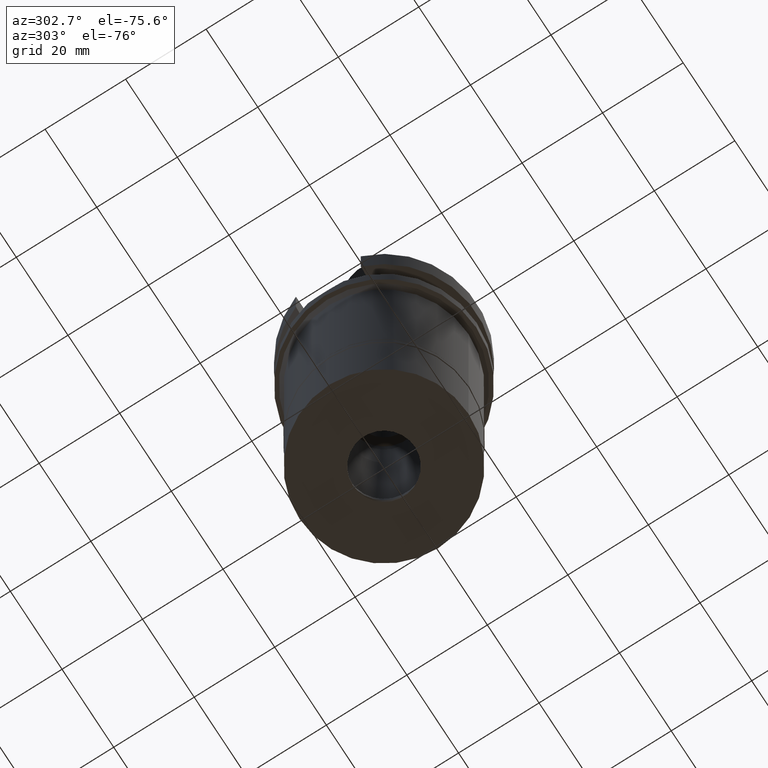
[diagram: clean part render]
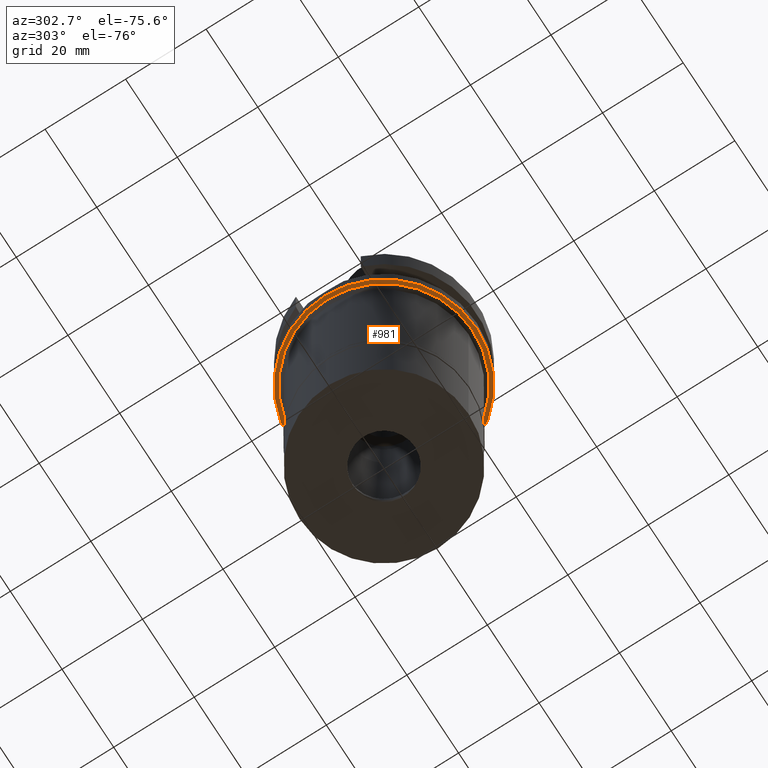
[diagram: same view with one face highlighted and labeled with its STEP entity id]
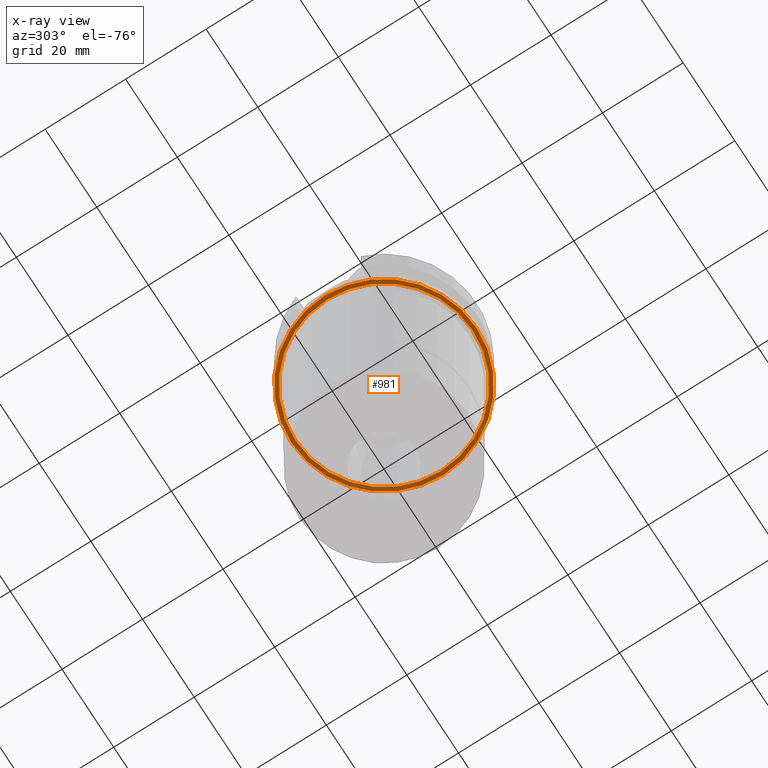
[diagram: x-ray of the same camera — body ghosted, the highlighted face saturated]
A machine part, auxiliary view. The second image highlights one B-rep face of the part: STEP entity #981.
The next image is the same camera in x-ray: the body ghosted, the highlighted face saturated — about 38% of this face is hidden behind the body in this view.
In plain terms, the highlighted planar face has unit normal (0, 0, -1).
Its self-contained STEP definition (entity closure, byte-faithful):
#113 = ORIENTED_EDGE ( 'NONE', *, *, #925, .F. ) ;
#184 = FACE_OUTER_BOUND ( 'NONE', #301, .T. ) ;
#274 = CARTESIAN_POINT ( 'NONE',  ( 0.0000000000000000000, -22.00000000000000000, -22.00000000000000000 ) ) ;
#301 = EDGE_LOOP ( 'NONE', ( #113, #1977 ) ) ;
#306 = CARTESIAN_POINT ( 'NONE',  ( 0.0000000000000000000, -23.00000000000000000, -22.00000000000000000 ) ) ;
#358 = PLANE ( 'NONE',  #1905 ) ;
#379 = AXIS2_PLACEMENT_3D ( 'NONE', #657, #2399, #918 ) ;
#429 = CIRCLE ( 'NONE', #379, 23.00000000000000000 ) ;
#479 = AXIS2_PLACEMENT_3D ( 'NONE', #1483, #1531, #2215 ) ;
#563 = CARTESIAN_POINT ( 'NONE',  ( 0.0000000000000000000, 0.0000000000000000000, -22.00000000000000000 ) ) ;
#633 = CIRCLE ( 'NONE', #1851, 22.00000000000000000 ) ;
#657 = CARTESIAN_POINT ( 'NONE',  ( 0.0000000000000000000, 0.0000000000000000000, -22.00000000000000000 ) ) ;
#738 = EDGE_CURVE ( 'NONE', #1565, #2556, #429, .T. ) ;
#918 = DIRECTION ( 'NONE',  ( 0.0000000000000000000, -1.000000000000000000, 0.0000000000000000000 ) ) ;
#925 = EDGE_CURVE ( 'NONE', #2556, #1565, #1225, .T. ) ;
#981 = ADVANCED_FACE ( 'NONE', ( #184, #1550 ), #358, .T. ) ;
#1001 = DIRECTION ( 'NONE',  ( 0.0000000000000000000, 1.000000000000000000, 0.0000000000000000000 ) ) ;
#1037 = DIRECTION ( 'NONE',  ( 0.0000000000000000000, 0.0000000000000000000, -1.000000000000000000 ) ) ;
#1050 = CARTESIAN_POINT ( 'NONE',  ( 0.0000000000000000000, 23.00000000000000000, -22.00000000000000000 ) ) ;
#1085 = CIRCLE ( 'NONE', #2825, 22.00000000000000000 ) ;
#1096 = EDGE_LOOP ( 'NONE', ( #1790, #1662 ) ) ;
#1131 = CARTESIAN_POINT ( 'NONE',  ( 0.0000000000000000000, 0.0000000000000000000, -22.00000000000000000 ) ) ;
#1190 = CARTESIAN_POINT ( 'NONE',  ( 0.0000000000000000000, 22.00000000000000000, -22.00000000000000000 ) ) ;
#1225 = CIRCLE ( 'NONE', #479, 23.00000000000000000 ) ;
#1478 = VERTEX_POINT ( 'NONE', #274 ) ;
#1483 = CARTESIAN_POINT ( 'NONE',  ( 0.0000000000000000000, 0.0000000000000000000, -22.00000000000000000 ) ) ;
#1531 = DIRECTION ( 'NONE',  ( 0.0000000000000000000, 0.0000000000000000000, 1.000000000000000000 ) ) ;
#1550 = FACE_BOUND ( 'NONE', #1096, .T. ) ;
#1565 = VERTEX_POINT ( 'NONE', #306 ) ;
#1662 = ORIENTED_EDGE ( 'NONE', *, *, #2405, .F. ) ;
#1686 = EDGE_CURVE ( 'NONE', #2443, #1478, #633, .T. ) ;
#1701 = CARTESIAN_POINT ( 'NONE',  ( 0.0000000000000000000, 0.0000000000000000000, -22.00000000000000000 ) ) ;
#1714 = DIRECTION ( 'NONE',  ( 0.0000000000000000000, 0.0000000000000000000, -1.000000000000000000 ) ) ;
#1790 = ORIENTED_EDGE ( 'NONE', *, *, #1686, .F. ) ;
#1851 = AXIS2_PLACEMENT_3D ( 'NONE', #563, #1037, #1001 ) ;
#1905 = AXIS2_PLACEMENT_3D ( 'NONE', #1131, #2280, #2999 ) ;
#1977 = ORIENTED_EDGE ( 'NONE', *, *, #738, .F. ) ;
#2215 = DIRECTION ( 'NONE',  ( 0.0000000000000000000, 1.000000000000000000, 0.0000000000000000000 ) ) ;
#2280 = DIRECTION ( 'NONE',  ( 0.0000000000000000000, 0.0000000000000000000, -1.000000000000000000 ) ) ;
#2368 = DIRECTION ( 'NONE',  ( 0.0000000000000000000, -1.000000000000000000, 0.0000000000000000000 ) ) ;
#2399 = DIRECTION ( 'NONE',  ( 0.0000000000000000000, 0.0000000000000000000, 1.000000000000000000 ) ) ;
#2405 = EDGE_CURVE ( 'NONE', #1478, #2443, #1085, .T. ) ;
#2443 = VERTEX_POINT ( 'NONE', #1190 ) ;
#2556 = VERTEX_POINT ( 'NONE', #1050 ) ;
#2825 = AXIS2_PLACEMENT_3D ( 'NONE', #1701, #1714, #2368 ) ;
#2999 = DIRECTION ( 'NONE',  ( 0.0000000000000000000, -1.000000000000000000, 0.0000000000000000000 ) ) ;